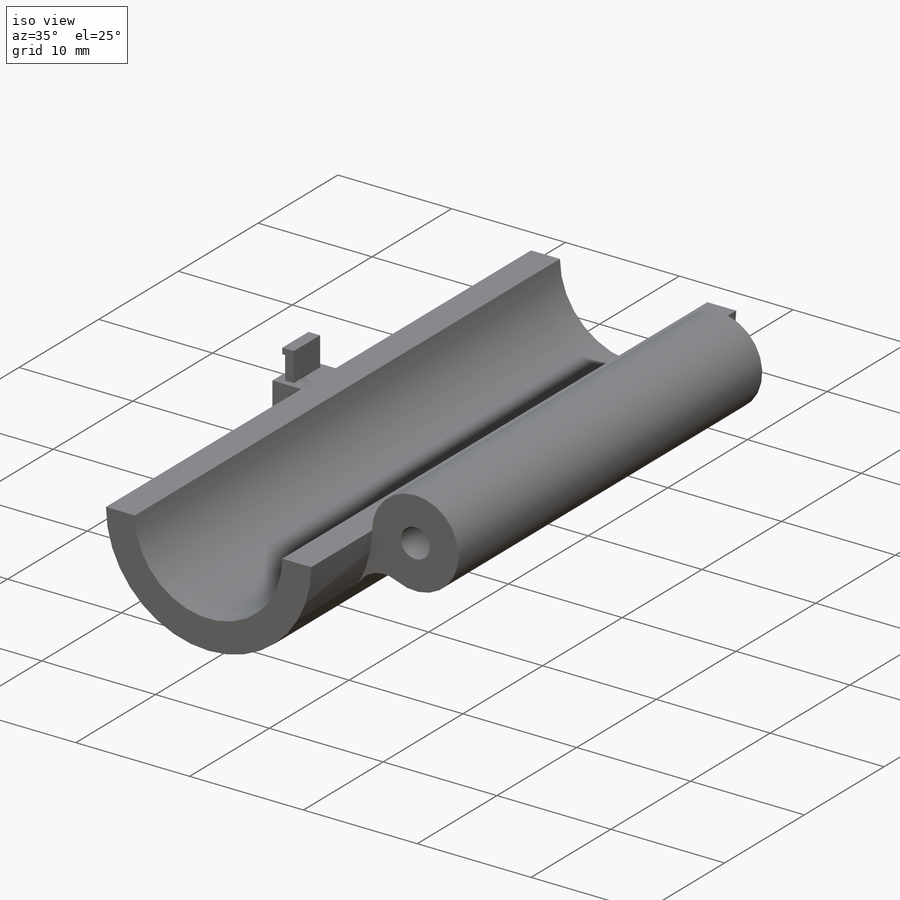
[diagram: iso view]
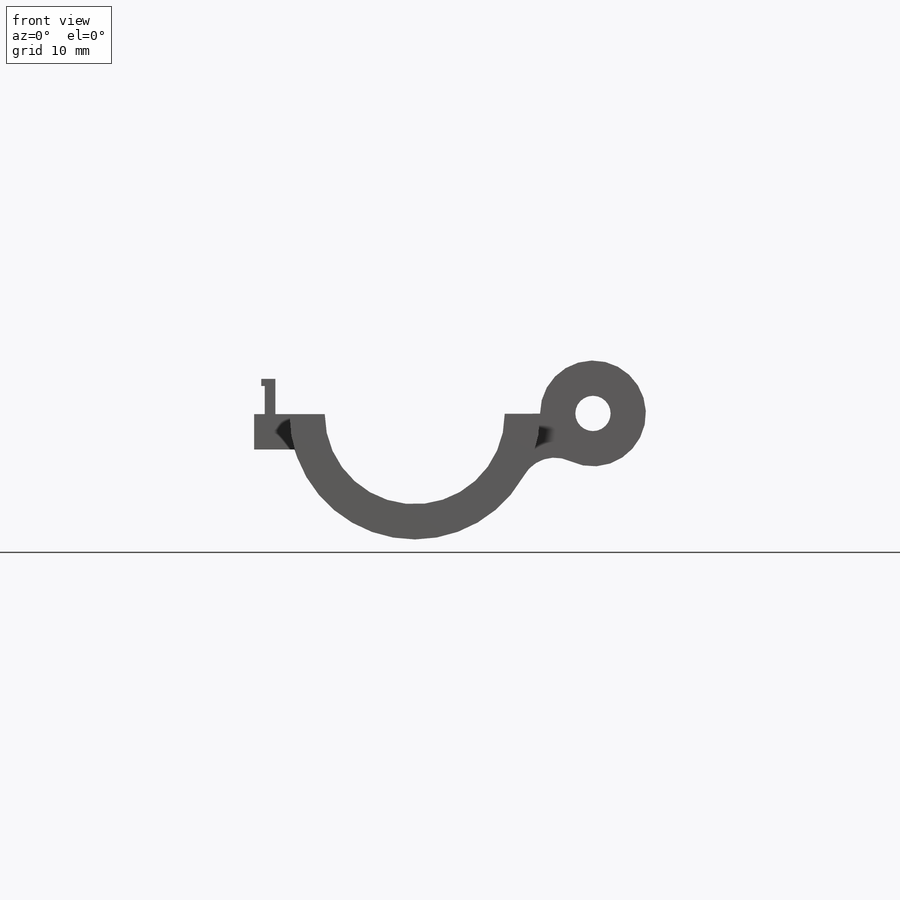
[diagram: front view]
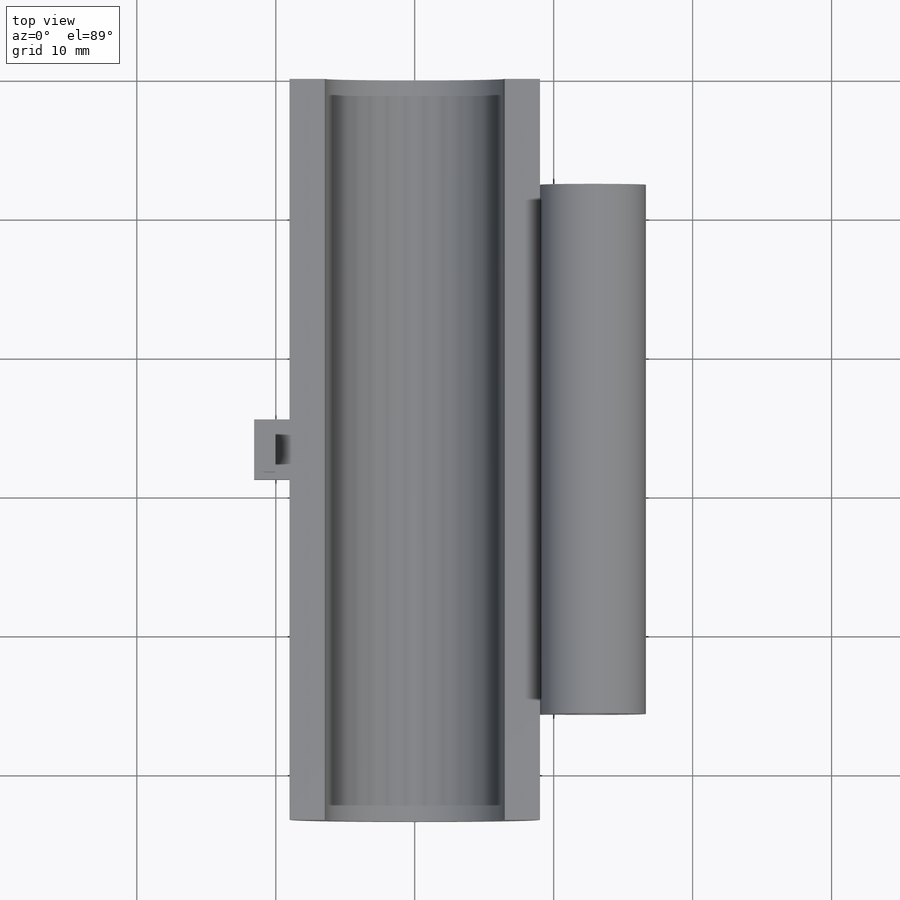
[diagram: top view]
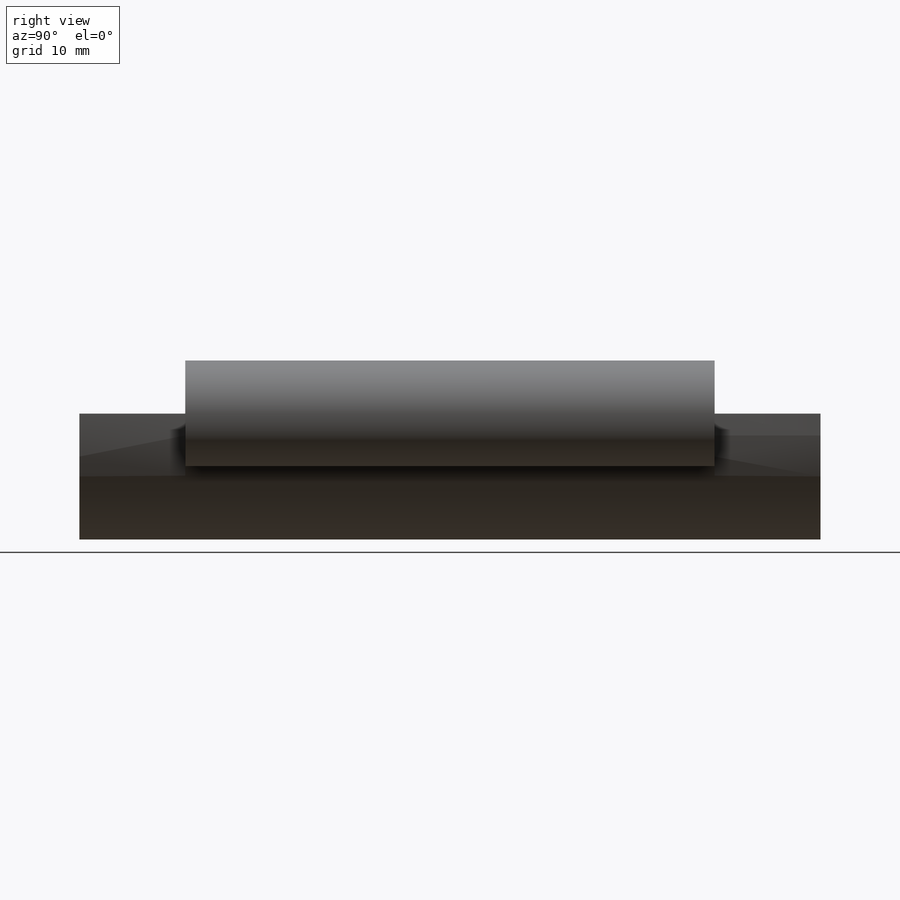
[diagram: right view]
SOLIDWORKS PART (.sldprt)
format: sldprt  version: not decoded by parser v0  size: 262,656 bytes
history: native  units: mm
features: sketch x8, extrude x3, fillet x2, material x1, plane x1 (+14 scaffold rows collapsed)
feature tree (29):
  scaffold x14  (default folders/planes/origin — collapsed)
  material  "Material <not specified>"
  sketch  "Sketch1"  dims[c1.D1=6.477mm c2.D1=53.34mm c2.D5=2.54mm c2.D6=2.54mm c2.D7=5.0mm]
  sketch  "Sketch10"
  sketch  "Sketch13"  dims[D1=3.81mm]
  plane  "Plane5"
  sketch  "Sketch17"  dims[D1=7.62mm D2=2.54mm]
  extrude  "Boss-Extrude3"  Depth=19.05mm
  fillet  "Fillet5"  Radius=2.54mm
  sketch  "Sketch19"  dims[c1.D1=5.08mm c1.D2=2.032mm c2.D1=5.08mm c2.D2=4.318mm]
  extrude  "Boss-Extrude4"  Depth=2.54mm
  sketch  "Sketch20"  dims[D1=2.54mm D5=4.318mm D6=2.54mm D7=5.0mm]
  sketch  "Sketch21"  dims[c1.D2=3.556mm c1.D3=~0.765405mm c1.D4=~0.866727mm c1.D5=~2.685868mm c2.D3=3.302mm c2.D4=0.508mm c2.D5=1.524mm c2.D1=0.762mm]
  extrude  "Boss-Extrude5"  Depth=2.54mm
  sketch  "Sketch22"
  fillet  "Extrude-Thin4"  Radius=0.254mm
decode coverage: 11 of 13 modeling features carry decoded parameters
note: ~ marks probable driven/reference dimensions
note: suppression state not decoded; provenance and decode notes live in map.json
